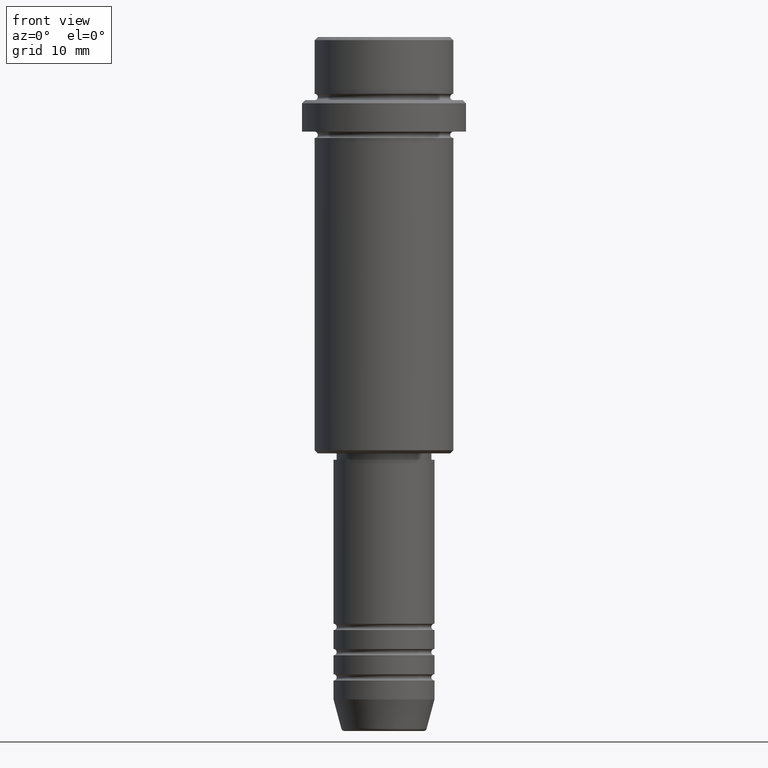
[diagram: clean part render]
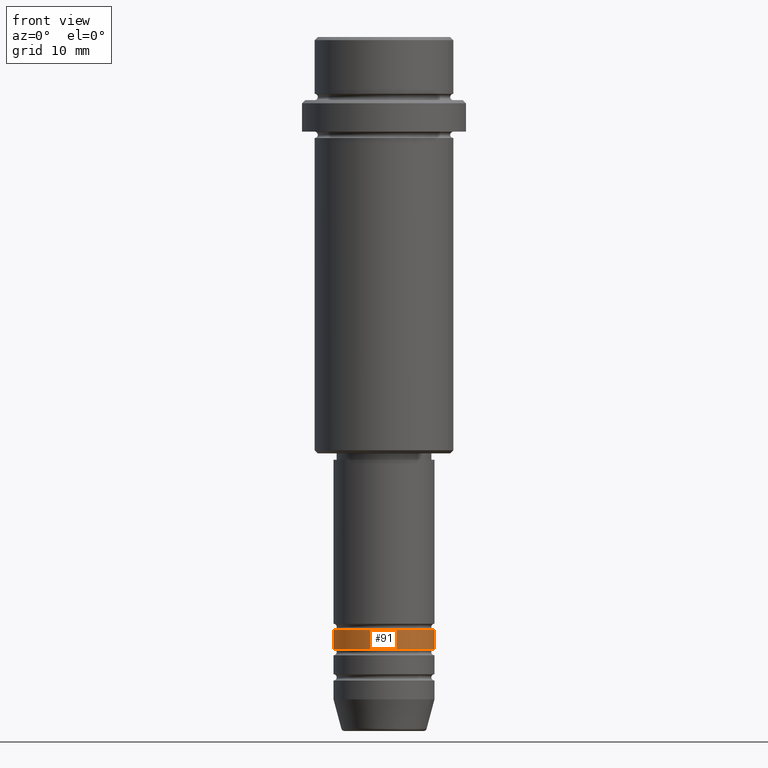
[diagram: same view with one face highlighted and labeled with its STEP entity id]
A machine part, front view. The second image highlights one B-rep face of the part: STEP entity #91.
In plain terms, the highlighted cylindrical surface (partial cylindrical patch) has radius 8 mm, axis along (-0, -0, 1).
Its self-contained STEP definition (entity closure, byte-faithful):
#48 = DIRECTION ( 'NONE',  ( 1.000000000000000000, 0.000000000000000000, 0.000000000000000000 ) ) ;
#63 = EDGE_CURVE ( 'NONE', #1273, #169, #1343, .T. ) ;
#91 = ADVANCED_FACE ( 'NONE', ( #1395 ), #433, .T. ) ;
#94 = ORIENTED_EDGE ( 'NONE', *, *, #63, .T. ) ;
#112 = AXIS2_PLACEMENT_3D ( 'NONE', #124, #549, #252 ) ;
#124 = CARTESIAN_POINT ( 'NONE',  ( 0.000000000000000000, 0.000000000000000000, -93.99999999999988631 ) ) ;
#144 = CARTESIAN_POINT ( 'NONE',  ( 8.000000000000000000, 0.000000000000000000, 0.000000000000000000 ) ) ;
#147 = CIRCLE ( 'NONE', #112, 8.000000000000000000 ) ;
#169 = VERTEX_POINT ( 'NONE', #300 ) ;
#181 = CARTESIAN_POINT ( 'NONE',  ( -8.000000000000000000, 9.797174393178825657E-16, 0.000000000000000000 ) ) ;
#211 = CARTESIAN_POINT ( 'NONE',  ( 8.000000000000000000, 0.000000000000000000, -93.99999999999988631 ) ) ;
#252 = DIRECTION ( 'NONE',  ( 1.000000000000000000, 0.000000000000000000, 0.000000000000000000 ) ) ;
#254 = EDGE_CURVE ( 'NONE', #746, #910, #147, .T. ) ;
#300 = CARTESIAN_POINT ( 'NONE',  ( 8.000000000000000000, 0.000000000000000000, -96.99999999999988631 ) ) ;
#309 = CARTESIAN_POINT ( 'NONE',  ( 0.000000000000000000, 0.000000000000000000, 0.000000000000000000 ) ) ;
#345 = EDGE_CURVE ( 'NONE', #1273, #746, #1377, .T. ) ;
#433 = CYLINDRICAL_SURFACE ( 'NONE', #806, 8.000000000000000000 ) ;
#549 = DIRECTION ( 'NONE',  ( -0.000000000000000000, -0.000000000000000000, 1.000000000000000000 ) ) ;
#576 = ORIENTED_EDGE ( 'NONE', *, *, #254, .F. ) ;
#614 = EDGE_LOOP ( 'NONE', ( #1059, #94, #1323, #576 ) ) ;
#650 = DIRECTION ( 'NONE',  ( 1.000000000000000000, 0.000000000000000000, 0.000000000000000000 ) ) ;
#675 = EDGE_CURVE ( 'NONE', #169, #910, #1114, .T. ) ;
#746 = VERTEX_POINT ( 'NONE', #840 ) ;
#806 = AXIS2_PLACEMENT_3D ( 'NONE', #309, #957, #650 ) ;
#817 = DIRECTION ( 'NONE',  ( -0.000000000000000000, -0.000000000000000000, 1.000000000000000000 ) ) ;
#829 = VECTOR ( 'NONE', #817, 1000.000000000000000 ) ;
#840 = CARTESIAN_POINT ( 'NONE',  ( -8.000000000000000000, 9.797174393178825657E-16, -93.99999999999988631 ) ) ;
#910 = VERTEX_POINT ( 'NONE', #211 ) ;
#957 = DIRECTION ( 'NONE',  ( -0.000000000000000000, -0.000000000000000000, 1.000000000000000000 ) ) ;
#1058 = CARTESIAN_POINT ( 'NONE',  ( -8.000000000000000000, 9.797174393178825657E-16, -96.99999999999988631 ) ) ;
#1059 = ORIENTED_EDGE ( 'NONE', *, *, #345, .F. ) ;
#1114 = LINE ( 'NONE', #144, #829 ) ;
#1149 = DIRECTION ( 'NONE',  ( -0.000000000000000000, -0.000000000000000000, 1.000000000000000000 ) ) ;
#1253 = CARTESIAN_POINT ( 'NONE',  ( 0.000000000000000000, 0.000000000000000000, -96.99999999999988631 ) ) ;
#1273 = VERTEX_POINT ( 'NONE', #1058 ) ;
#1279 = DIRECTION ( 'NONE',  ( -0.000000000000000000, -0.000000000000000000, 1.000000000000000000 ) ) ;
#1323 = ORIENTED_EDGE ( 'NONE', *, *, #675, .T. ) ;
#1340 = AXIS2_PLACEMENT_3D ( 'NONE', #1253, #1149, #48 ) ;
#1343 = CIRCLE ( 'NONE', #1340, 8.000000000000000000 ) ;
#1377 = LINE ( 'NONE', #181, #1384 ) ;
#1384 = VECTOR ( 'NONE', #1279, 1000.000000000000000 ) ;
#1395 = FACE_OUTER_BOUND ( 'NONE', #614, .T. ) ;